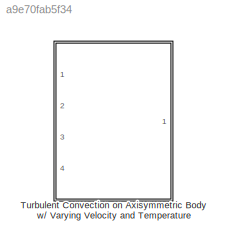
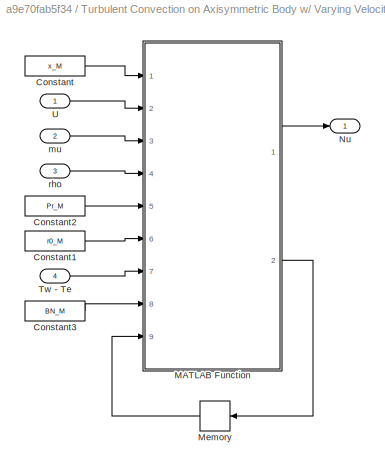
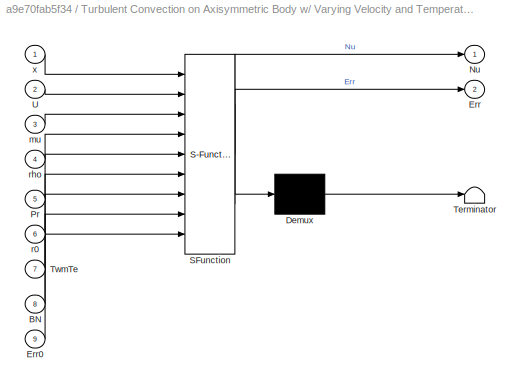
MODEL slx_a9e70fab5f34
KIND library
CONFIG AbsTol = auto
CONFIG FixedStep = auto
CONFIG MaxStep = auto
CONFIG MinStep = auto
CONFIG RelTol = 1e-3
CONFIG SampleTimeConstraint = Unconstrained
CONFIG Solver = ode45
CONFIG SolverMode = Auto
CONFIG SolverName = ode45
CONFIG StartTime = 0.0
CONFIG StopTime = 10.0
BLOCK [SubSystem] Turbulent Convection on Axisymmetric Body w// Varying Velocity and Temperature
  Ports = [4, 1]
  RequestExecContextInheritance = off
BLOCK [Constant] Turbulent Convection on Axisymmetric Body w// Varying Velocity and Temperature/Constant
  Value = x_M
BLOCK [Constant] Turbulent Convection on Axisymmetric Body w// Varying Velocity and Temperature/Constant1
  Value = r0_M
BLOCK [Constant] Turbulent Convection on Axisymmetric Body w// Varying Velocity and Temperature/Constant2
  Value = Pr_M
BLOCK [Constant] Turbulent Convection on Axisymmetric Body w// Varying Velocity and Temperature/Constant3
  Value = BN_M
BLOCK [SubSystem] Turbulent Convection on Axisymmetric Body w// Varying Velocity and Temperature/MATLAB Function
  ErrorFcn = Stateflow.Translate.translate
  PermitHierarchicalResolution = ExplicitOnly
  Ports = [9, 2]
  RequestExecContextInheritance = off
  SFBlockType = MATLAB Function
  TreatAsAtomicUnit = on
BLOCK [Demux] Turbulent Convection on Axisymmetric Body w// Varying Velocity and Temperature/MATLAB Function/ Demux 
  Outputs = 1
  Ports = [1, 1]
BLOCK [S-Function] Turbulent Convection on Axisymmetric Body w// Varying Velocity and Temperature/MATLAB Function/ SFunction 
  EnableBusSupport = on
  FunctionName = sf_sfun
  PortCounts = [9 3]
  Ports = [9, 3]
  Tag = Stateflow S-Function lib_Convection_TurbAxiSymAmbrok 2
BLOCK [Terminator] Turbulent Convection on Axisymmetric Body w// Varying Velocity and Temperature/MATLAB Function/ Terminator 
BLOCK [Inport] Turbulent Convection on Axisymmetric Body w// Varying Velocity and Temperature/MATLAB Function/BN
  IconDisplay = Port number
  Port = 8
BLOCK [Outport] Turbulent Convection on Axisymmetric Body w// Varying Velocity and Temperature/MATLAB Function/Err
  IconDisplay = Port number
  Port = 2
BLOCK [Inport] Turbulent Convection on Axisymmetric Body w// Varying Velocity and Temperature/MATLAB Function/Err0
  IconDisplay = Port number
  Port = 9
BLOCK [Outport] Turbulent Convection on Axisymmetric Body w// Varying Velocity and Temperature/MATLAB Function/Nu
  IconDisplay = Port number
BLOCK [Inport] Turbulent Convection on Axisymmetric Body w// Varying Velocity and Temperature/MATLAB Function/Pr
  IconDisplay = Port number
  Port = 5
BLOCK [Inport] Turbulent Convection on Axisymmetric Body w// Varying Velocity and Temperature/MATLAB Function/TwmTe
  IconDisplay = Port number
  Port = 7
BLOCK [Inport] Turbulent Convection on Axisymmetric Body w// Varying Velocity and Temperature/MATLAB Function/U
  IconDisplay = Port number
  Port = 2
BLOCK [Inport] Turbulent Convection on Axisymmetric Body w// Varying Velocity and Temperature/MATLAB Function/mu
  IconDisplay = Port number
  Port = 3
BLOCK [Inport] Turbulent Convection on Axisymmetric Body w// Varying Velocity and Temperature/MATLAB Function/r0
  IconDisplay = Port number
  Port = 6
BLOCK [Inport] Turbulent Convection on Axisymmetric Body w// Varying Velocity and Temperature/MATLAB Function/rho
  IconDisplay = Port number
  Port = 4
BLOCK [Inport] Turbulent Convection on Axisymmetric Body w// Varying Velocity and Temperature/MATLAB Function/x
  IconDisplay = Port number
BLOCK [Memory] Turbulent Convection on Axisymmetric Body w// Varying Velocity and Temperature/Memory
  X0 = zeros(1,24)
BLOCK [Outport] Turbulent Convection on Axisymmetric Body w// Varying Velocity and Temperature/Nu
  IconDisplay = Port number
BLOCK [Inport] Turbulent Convection on Axisymmetric Body w// Varying Velocity and Temperature/Tw - Te
  IconDisplay = Port number
  Port = 4
BLOCK [Inport] Turbulent Convection on Axisymmetric Body w// Varying Velocity and Temperature/U
  IconDisplay = Port number
BLOCK [Inport] Turbulent Convection on Axisymmetric Body w// Varying Velocity and Temperature/mu
  IconDisplay = Port number
  Port = 2
BLOCK [Inport] Turbulent Convection on Axisymmetric Body w// Varying Velocity and Temperature/rho
  IconDisplay = Port number
  Port = 3
LINE Turbulent Convection on Axisymmetric Body w// Varying Velocity and Temperature/Constant1:1 -> Turbulent Convection on Axisymmetric Body w// Varying Velocity and Temperature/MATLAB Function:6
LINE Turbulent Convection on Axisymmetric Body w// Varying Velocity and Temperature/Constant2:1 -> Turbulent Convection on Axisymmetric Body w// Varying Velocity and Temperature/MATLAB Function:5
LINE Turbulent Convection on Axisymmetric Body w// Varying Velocity and Temperature/Constant3:1 -> Turbulent Convection on Axisymmetric Body w// Varying Velocity and Temperature/MATLAB Function:8
LINE Turbulent Convection on Axisymmetric Body w// Varying Velocity and Temperature/Constant:1 -> Turbulent Convection on Axisymmetric Body w// Varying Velocity and Temperature/MATLAB Function:1
LINE Turbulent Convection on Axisymmetric Body w// Varying Velocity and Temperature/MATLAB Function:1 -> Turbulent Convection on Axisymmetric Body w// Varying Velocity and Temperature/Nu:1
LINE Turbulent Convection on Axisymmetric Body w// Varying Velocity and Temperature/MATLAB Function:2 -> Turbulent Convection on Axisymmetric Body w// Varying Velocity and Temperature/Memory:1
LINE Turbulent Convection on Axisymmetric Body w// Varying Velocity and Temperature/Memory:1 -> Turbulent Convection on Axisymmetric Body w// Varying Velocity and Temperature/MATLAB Function:9
LINE Turbulent Convection on Axisymmetric Body w// Varying Velocity and Temperature/Tw - Te:1 -> Turbulent Convection on Axisymmetric Body w// Varying Velocity and Temperature/MATLAB Function:7
LINE Turbulent Convection on Axisymmetric Body w// Varying Velocity and Temperature/U:1 -> Turbulent Convection on Axisymmetric Body w// Varying Velocity and Temperature/MATLAB Function:2
LINE Turbulent Convection on Axisymmetric Body w// Varying Velocity and Temperature/mu:1 -> Turbulent Convection on Axisymmetric Body w// Varying Velocity and Temperature/MATLAB Function:3
LINE Turbulent Convection on Axisymmetric Body w// Varying Velocity and Temperature/rho:1 -> Turbulent Convection on Axisymmetric Body w// Varying Velocity and Temperature/MATLAB Function:4
CHART Turbulent Convection on Axisymmetric Body 
w// Varying Velocity and Temperature/MATLAB Function states=1 transitions=1
  STATE_LABEL 'eML_blk_kernel()'
  STATE_LABEL "SCRIPT:\nfunction [Nu,Err] = TurbFlwAxialBody(x,U,mu,rho,Pr,r0,TwmTe,BN,Err0)\n%#codegen\n\n%Error/Warning Checks ----------------------------------------------------%\n\nErr = Err0;\nErrNum = 1;\n%---- x and r0 ----%\n%x and r0 are the same length\nif length(x) ~= length(r0) && Err(ErrNum) < 1\n    Err(ErrNum) = 1;\n    fprintf('Warning in %s: x_M and r0_M should be the same length.\\n',char(BN));\nend\nErrNum ...<+3608ch>"
